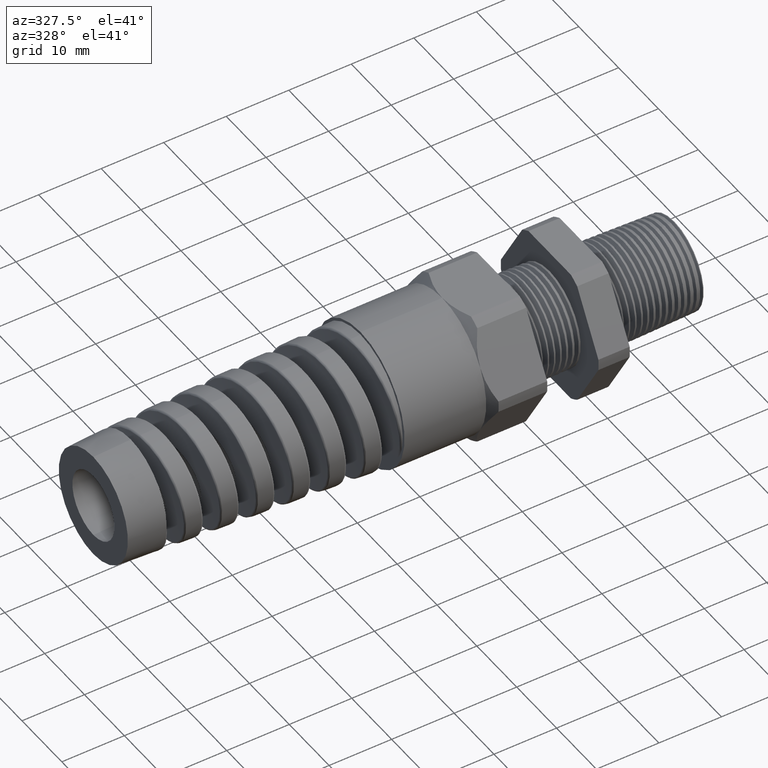
[diagram: clean part render]
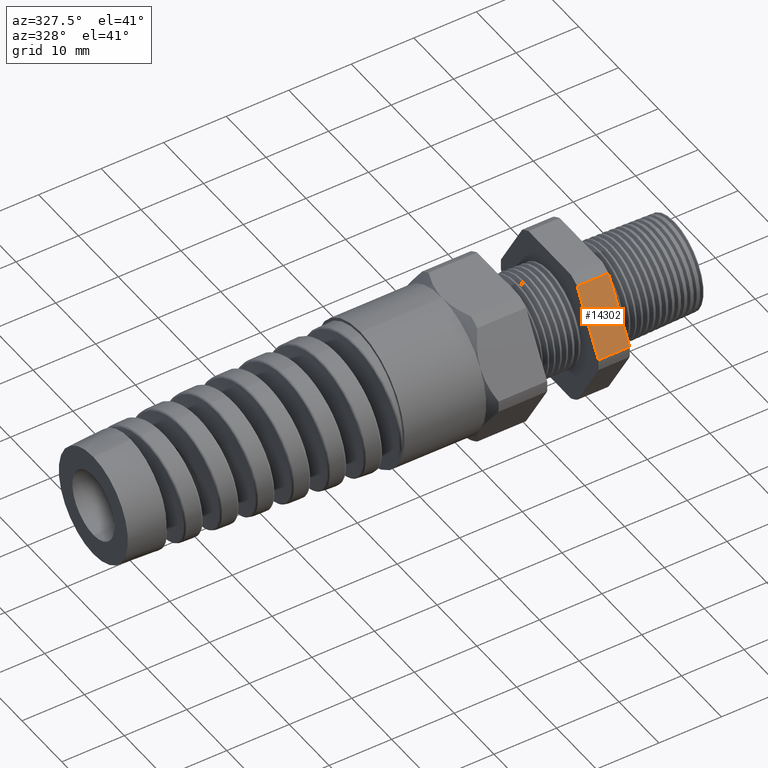
[diagram: same view with one face highlighted and labeled with its STEP entity id]
A machine part, auxiliary view. The second image highlights one B-rep face of the part: STEP entity #14302.
In plain terms, the highlighted planar face has unit normal (0, -0.866, 0.5).
Its self-contained STEP definition (entity closure, byte-faithful):
#4977 = ORIENTED_EDGE ( 'NONE', *, *, #5023, .F. ) ;
#4998 = VERTEX_POINT ( 'NONE', #9240 ) ;
#5000 = EDGE_CURVE ( 'NONE', #5008, #14303, #9239, .T. ) ;
#5003 = ORIENTED_EDGE ( 'NONE', *, *, #6253, .F. ) ;
#5008 = VERTEX_POINT ( 'NONE', #9231 ) ;
#5015 = ORIENTED_EDGE ( 'NONE', *, *, #5000, .F. ) ;
#5023 = EDGE_CURVE ( 'NONE', #14303, #4998, #9328, .T. ) ;
#5024 = ORIENTED_EDGE ( 'NONE', *, *, #5025, .T. ) ;
#5025 = EDGE_CURVE ( 'NONE', #6245, #4998, #9324, .T. ) ;
#6245 = VERTEX_POINT ( 'NONE', #9301 ) ;
#6253 = EDGE_CURVE ( 'NONE', #6245, #5008, #9300, .T. ) ;
#9231 = CARTESIAN_POINT ( 'NONE',  ( -0.3100000000000000000, -0.4815054990391102700, 0.03600801154045355600 ) ) ;
#9236 = DIRECTION ( 'NONE',  ( -1.000000000000000000, 0.0000000000000000000, 0.0000000000000000000 ) ) ;
#9237 = VECTOR ( 'NONE', #9236, 39.37007874015748100 ) ;
#9238 = CARTESIAN_POINT ( 'NONE',  ( 0.2800000000000000300, -0.4815054990391102700, 0.03600801154045355600 ) ) ;
#9239 = LINE ( 'NONE', #9238, #9237 ) ;
#9240 = CARTESIAN_POINT ( 'NONE',  ( -0.5068503937007874400, -0.2719366022533513700, 0.3989919884595462500 ) ) ;
#9298 = VECTOR ( 'NONE', #9361, 39.37007874015748100 ) ;
#9299 = CARTESIAN_POINT ( 'NONE',  ( -0.3100000000000000000, -0.1592210506462307100, 0.5942210506462305400 ) ) ;
#9300 = LINE ( 'NONE', #9299, #9298 ) ;
#9301 = CARTESIAN_POINT ( 'NONE',  ( -0.3100000000000000000, -0.2719366022533513700, 0.3989919884595462500 ) ) ;
#9321 = DIRECTION ( 'NONE',  ( -1.000000000000000000, 0.0000000000000000000, 0.0000000000000000000 ) ) ;
#9322 = VECTOR ( 'NONE', #9321, 39.37007874015748100 ) ;
#9323 = CARTESIAN_POINT ( 'NONE',  ( 0.2800000000000000300, -0.2719366022533513700, 0.3989919884595462500 ) ) ;
#9324 = LINE ( 'NONE', #9323, #9322 ) ;
#9325 = DIRECTION ( 'NONE',  ( 0.0000000000000000000, 0.4999999999999998300, 0.8660254037844388200 ) ) ;
#9326 = VECTOR ( 'NONE', #9325, 39.37007874015748100 ) ;
#9327 = CARTESIAN_POINT ( 'NONE',  ( -0.5068503937007874400, -0.1592210506462307100, 0.5942210506462305400 ) ) ;
#9328 = LINE ( 'NONE', #9327, #9326 ) ;
#9361 = DIRECTION ( 'NONE',  ( 0.0000000000000000000, -0.4999999999999998300, -0.8660254037844388200 ) ) ;
#9591 = CARTESIAN_POINT ( 'NONE',  ( -0.5068503937007874400, -0.4815054990391102700, 0.03600801154045355600 ) ) ;
#9593 = DIRECTION ( 'NONE',  ( 0.0000000000000000000, -0.4999999999999998300, -0.8660254037844388200 ) ) ;
#9595 = DIRECTION ( 'NONE',  ( 0.0000000000000000000, -0.8660254037844388200, 0.4999999999999998300 ) ) ;
#9597 = CARTESIAN_POINT ( 'NONE',  ( 0.2800000000000000300, -0.4815054990391102700, 0.03600801154045359800 ) ) ;
#9598 = AXIS2_PLACEMENT_3D ( 'NONE', #9597, #9595, #9593 ) ;
#9600 = PLANE ( 'NONE',  #9598 ) ;
#9607 = FACE_OUTER_BOUND ( 'NONE', #14289, .T. ) ;
#14289 = EDGE_LOOP ( 'NONE', ( #5015, #5003, #5024, #4977 ) ) ;
#14302 = ADVANCED_FACE ( 'NONE', ( #9607 ), #9600, .T. ) ;
#14303 = VERTEX_POINT ( 'NONE', #9591 ) ;